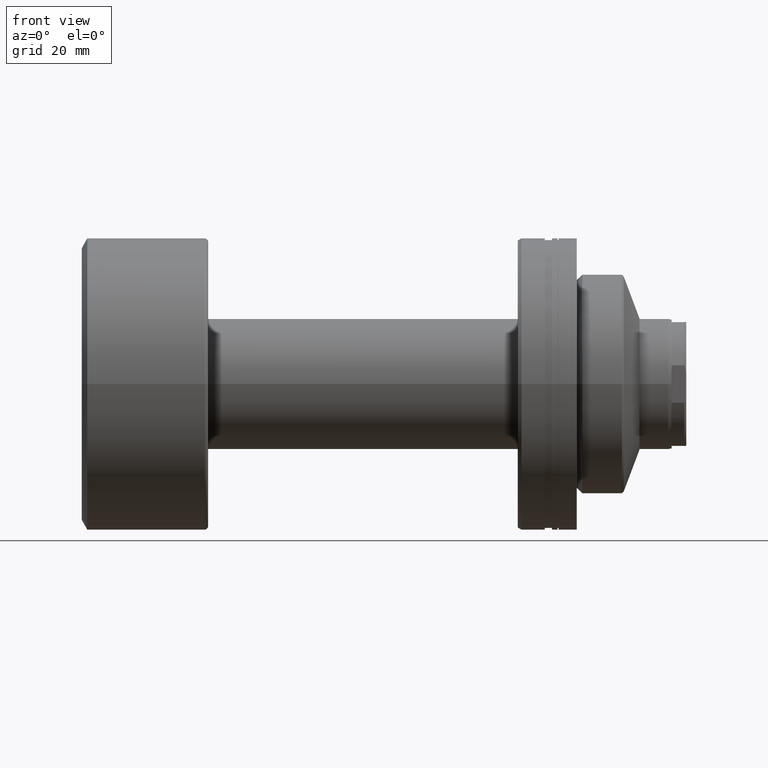
[diagram: clean part render]
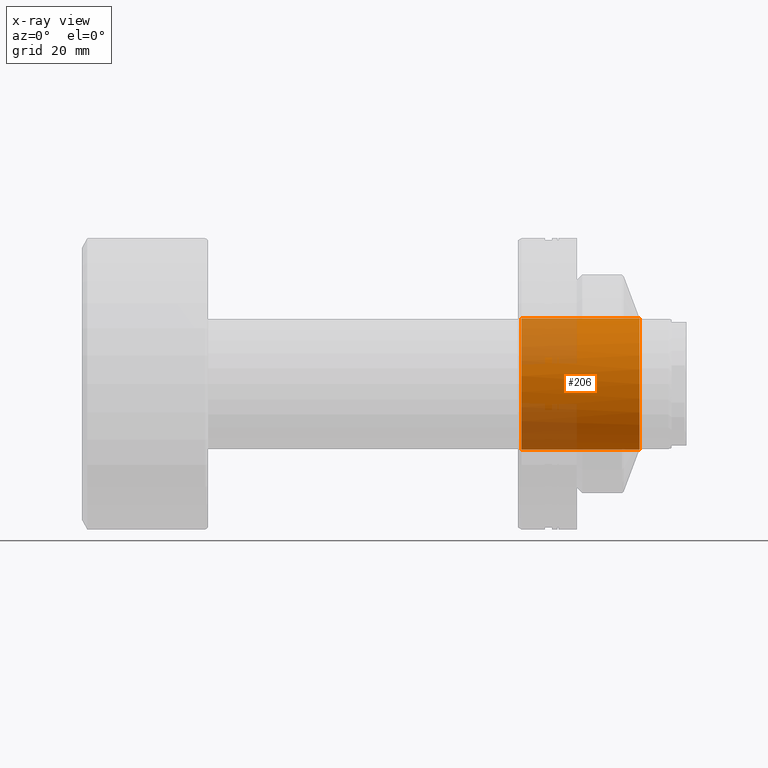
[diagram: x-ray — body ghosted, one internal face saturated and labeled with its STEP entity id]
A machine part, front view, then the same camera in x-ray: the body is ghosted and one INTERNAL B-rep face — a face not visible from any outside direction — is saturated and labeled: STEP entity #206.
In plain terms, the highlighted cylindrical surface (partial cylindrical patch) has radius 18 mm, axis along (1, 0, 0).
Its self-contained STEP definition (entity closure, byte-faithful):
#2 = ORIENTED_EDGE ( 'NONE', *, *, #1653, .F. ) ;
#166 = EDGE_LOOP ( 'NONE', ( #1415, #1102, #2, #1795, #509 ) ) ;
#206 = ADVANCED_FACE ( 'NONE', ( #1161 ), #279, .F. ) ;
#220 = CARTESIAN_POINT ( 'NONE',  ( -6.772881355932618419, 8.787314973116373205E-15, 0.000000000000000000 ) ) ;
#242 = DIRECTION ( 'NONE',  ( -1.000000000000000000, -3.738146982434194072E-16, 0.000000000000000000 ) ) ;
#253 = EDGE_CURVE ( 'NONE', #2103, #369, #1491, .T. ) ;
#279 = CYLINDRICAL_SURFACE ( 'NONE', #1398, 18.00000000000000000 ) ;
#292 = CARTESIAN_POINT ( 'NONE',  ( -6.772881355932611314, -17.99999999999998934, 0.000000000000000000 ) ) ;
#369 = VERTEX_POINT ( 'NONE', #2145 ) ;
#438 = VERTEX_POINT ( 'NONE', #886 ) ;
#445 = CIRCLE ( 'NONE', #763, 18.00000000000000000 ) ;
#484 = CARTESIAN_POINT ( 'NONE',  ( -91.11168824543142364, 0.000000000000000000, 0.000000000000000000 ) ) ;
#509 = ORIENTED_EDGE ( 'NONE', *, *, #253, .F. ) ;
#570 = DIRECTION ( 'NONE',  ( 3.854941057726238097E-16, -1.000000000000000000, 0.000000000000000000 ) ) ;
#595 = DIRECTION ( 'NONE',  ( -1.000000000000000000, -3.738146982434194072E-16, 0.000000000000000000 ) ) ;
#611 = EDGE_CURVE ( 'NONE', #369, #1761, #1817, .T. ) ;
#626 = EDGE_CURVE ( 'NONE', #730, #438, #760, .T. ) ;
#730 = VERTEX_POINT ( 'NONE', #2068 ) ;
#760 = LINE ( 'NONE', #1445, #1712 ) ;
#763 = AXIS2_PLACEMENT_3D ( 'NONE', #922, #1242, #1627 ) ;
#853 = DIRECTION ( 'NONE',  ( 0.000000000000000000, 0.000000000000000000, -1.000000000000000000 ) ) ;
#886 = CARTESIAN_POINT ( 'NONE',  ( -6.772881355932618419, 2.204364238465240161E-15, 18.00000000000000000 ) ) ;
#909 = AXIS2_PLACEMENT_3D ( 'NONE', #220, #595, #1284 ) ;
#910 = EDGE_CURVE ( 'NONE', #2103, #730, #445, .T. ) ;
#922 = CARTESIAN_POINT ( 'NONE',  ( -39.19999999999999574, 0.000000000000000000, 0.000000000000000000 ) ) ;
#936 = CARTESIAN_POINT ( 'NONE',  ( -39.19999999999999574, 0.000000000000000000, -18.00000000000000000 ) ) ;
#1102 = ORIENTED_EDGE ( 'NONE', *, *, #626, .T. ) ;
#1127 = CARTESIAN_POINT ( 'NONE',  ( -91.11168824543142364, 0.000000000000000000, -18.00000000000000000 ) ) ;
#1146 = DIRECTION ( 'NONE',  ( 1.000000000000000000, -0.000000000000000000, -0.000000000000000000 ) ) ;
#1161 = FACE_OUTER_BOUND ( 'NONE', #166, .T. ) ;
#1185 = DIRECTION ( 'NONE',  ( 1.000000000000000000, -0.000000000000000000, -0.000000000000000000 ) ) ;
#1242 = DIRECTION ( 'NONE',  ( -1.000000000000000000, 0.000000000000000000, 0.000000000000000000 ) ) ;
#1284 = DIRECTION ( 'NONE',  ( 3.854941057726238097E-16, -1.000000000000000000, 0.000000000000000000 ) ) ;
#1398 = AXIS2_PLACEMENT_3D ( 'NONE', #484, #1185, #853 ) ;
#1415 = ORIENTED_EDGE ( 'NONE', *, *, #910, .T. ) ;
#1445 = CARTESIAN_POINT ( 'NONE',  ( -91.11168824543142364, 2.204364238465235033E-15, 18.00000000000000000 ) ) ;
#1491 = LINE ( 'NONE', #1127, #1671 ) ;
#1627 = DIRECTION ( 'NONE',  ( 0.000000000000000000, 0.000000000000000000, -1.000000000000000000 ) ) ;
#1645 = CIRCLE ( 'NONE', #909, 18.00000000000000000 ) ;
#1653 = EDGE_CURVE ( 'NONE', #1761, #438, #1645, .T. ) ;
#1671 = VECTOR ( 'NONE', #1146, 1000.000000000000000 ) ;
#1673 = AXIS2_PLACEMENT_3D ( 'NONE', #1704, #242, #570 ) ;
#1704 = CARTESIAN_POINT ( 'NONE',  ( -6.772881355932618419, 8.787314973116373205E-15, 0.000000000000000000 ) ) ;
#1712 = VECTOR ( 'NONE', #2167, 1000.000000000000000 ) ;
#1761 = VERTEX_POINT ( 'NONE', #292 ) ;
#1795 = ORIENTED_EDGE ( 'NONE', *, *, #611, .F. ) ;
#1817 = CIRCLE ( 'NONE', #1673, 18.00000000000000000 ) ;
#2068 = CARTESIAN_POINT ( 'NONE',  ( -39.19999999999999574, 2.204364238465235033E-15, 18.00000000000000000 ) ) ;
#2103 = VERTEX_POINT ( 'NONE', #936 ) ;
#2145 = CARTESIAN_POINT ( 'NONE',  ( -6.772881355932618419, 4.622231866529366047E-30, -18.00000000000000000 ) ) ;
#2167 = DIRECTION ( 'NONE',  ( 1.000000000000000000, -0.000000000000000000, -0.000000000000000000 ) ) ;